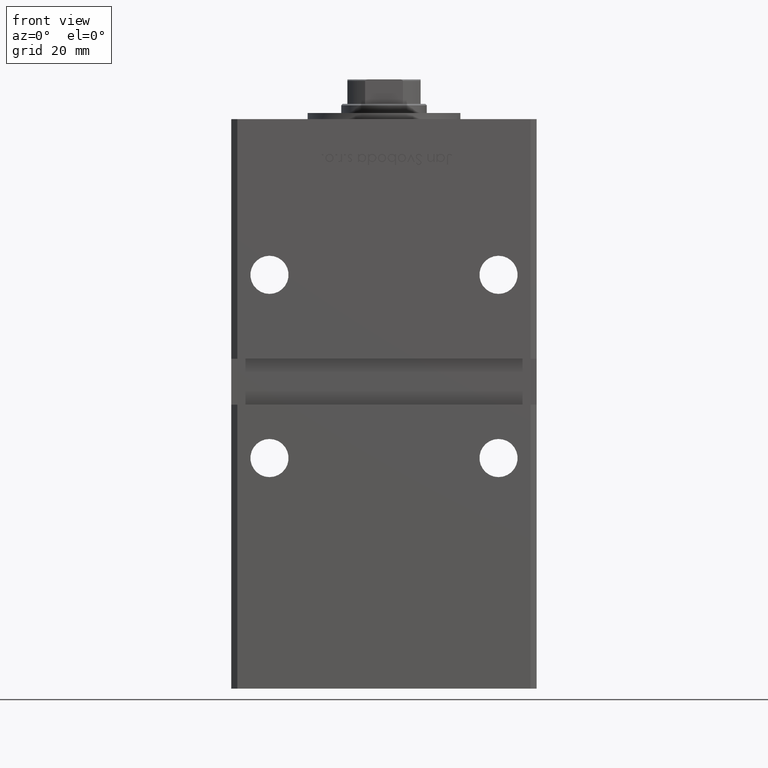
[diagram: clean part render]
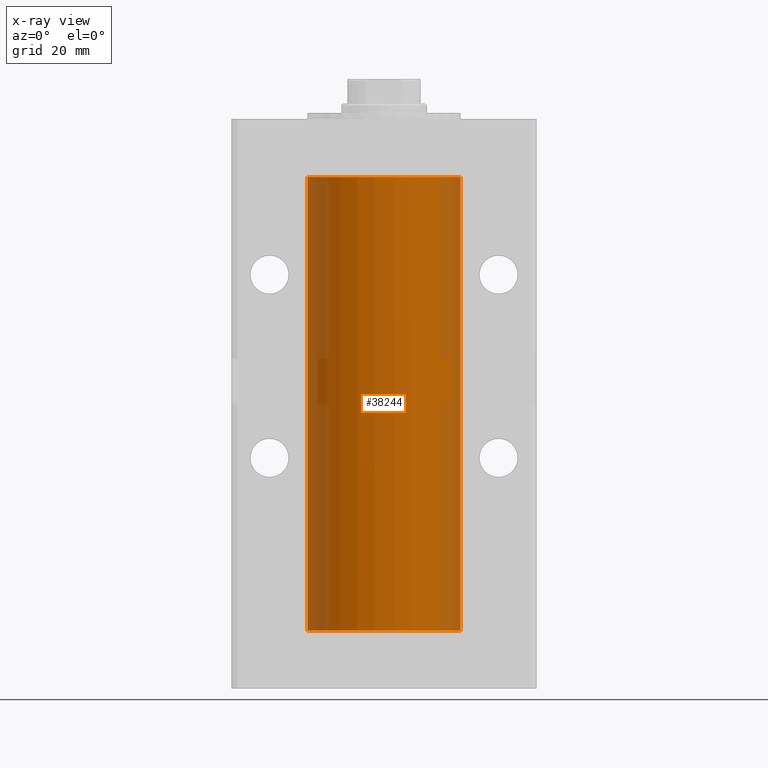
[diagram: x-ray — body ghosted, one internal face saturated and labeled with its STEP entity id]
A machine part, front view, then the same camera in x-ray: the body is ghosted and one INTERNAL B-rep face — a face not visible from any outside direction — is saturated and labeled: STEP entity #38244.
In plain terms, the highlighted cylindrical surface (partial cylindrical patch) has radius 25 mm, axis along (-0, -0, -1).
Its self-contained STEP definition (entity closure, byte-faithful):
#68 = CARTESIAN_POINT ( 'NONE',  ( 25.00000000000000000, 3.061616997868383043E-15, 148.5000000000000000 ) ) ;
#841 = DIRECTION ( 'NONE',  ( -0.000000000000000000, -0.000000000000000000, -1.000000000000000000 ) ) ;
#1848 = FACE_OUTER_BOUND ( 'NONE', #29789, .T. ) ;
#2095 = CIRCLE ( 'NONE', #20992, 25.00000000000000000 ) ;
#2819 = DIRECTION ( 'NONE',  ( -0.000000000000000000, -0.000000000000000000, -1.000000000000000000 ) ) ;
#2865 = CIRCLE ( 'NONE', #22652, 25.00000000000000000 ) ;
#6152 = EDGE_CURVE ( 'NONE', #49588, #12441, #33666, .T. ) ;
#7436 = CARTESIAN_POINT ( 'NONE',  ( 25.00000000000000000, 3.061616997868383043E-15, 0.000000000000000000 ) ) ;
#12441 = VERTEX_POINT ( 'NONE', #15564 ) ;
#12875 = DIRECTION ( 'NONE',  ( 1.000000000000000000, 0.000000000000000000, 0.000000000000000000 ) ) ;
#15564 = CARTESIAN_POINT ( 'NONE',  ( -25.00000000000000000, 0.000000000000000000, 0.000000000000000000 ) ) ;
#15660 = CARTESIAN_POINT ( 'NONE',  ( -25.00000000000000000, 0.000000000000000000, 148.5000000000000000 ) ) ;
#16630 = EDGE_CURVE ( 'NONE', #39097, #50068, #39432, .T. ) ;
#17415 = CARTESIAN_POINT ( 'NONE',  ( 0.000000000000000000, 0.000000000000000000, 148.5000000000000000 ) ) ;
#17711 = VECTOR ( 'NONE', #841, 1000.000000000000000 ) ;
#18700 = CARTESIAN_POINT ( 'NONE',  ( 25.00000000000000000, 3.061616997868383043E-15, 148.5000000000000000 ) ) ;
#20992 = AXIS2_PLACEMENT_3D ( 'NONE', #39458, #27593, #43489 ) ;
#22652 = AXIS2_PLACEMENT_3D ( 'NONE', #17415, #33835, #12875 ) ;
#24306 = EDGE_CURVE ( 'NONE', #49588, #39097, #2865, .T. ) ;
#26890 = EDGE_CURVE ( 'NONE', #12441, #50068, #2095, .T. ) ;
#27593 = DIRECTION ( 'NONE',  ( -0.000000000000000000, 0.000000000000000000, 1.000000000000000000 ) ) ;
#29362 = CARTESIAN_POINT ( 'NONE',  ( -25.00000000000000000, 0.000000000000000000, 148.5000000000000000 ) ) ;
#29789 = EDGE_LOOP ( 'NONE', ( #33481, #44005, #33809, #44688 ) ) ;
#33481 = ORIENTED_EDGE ( 'NONE', *, *, #24306, .T. ) ;
#33666 = LINE ( 'NONE', #29362, #17711 ) ;
#33809 = ORIENTED_EDGE ( 'NONE', *, *, #26890, .F. ) ;
#33835 = DIRECTION ( 'NONE',  ( -0.000000000000000000, 0.000000000000000000, 1.000000000000000000 ) ) ;
#34674 = CYLINDRICAL_SURFACE ( 'NONE', #48009, 25.00000000000000000 ) ;
#38244 = ADVANCED_FACE ( 'NONE', ( #1848 ), #34674, .F. ) ;
#39097 = VERTEX_POINT ( 'NONE', #68 ) ;
#39432 = LINE ( 'NONE', #18700, #45511 ) ;
#39458 = CARTESIAN_POINT ( 'NONE',  ( 0.000000000000000000, 0.000000000000000000, 0.000000000000000000 ) ) ;
#39521 = CARTESIAN_POINT ( 'NONE',  ( 0.000000000000000000, 0.000000000000000000, 148.5000000000000000 ) ) ;
#43489 = DIRECTION ( 'NONE',  ( 1.000000000000000000, 0.000000000000000000, 0.000000000000000000 ) ) ;
#44005 = ORIENTED_EDGE ( 'NONE', *, *, #16630, .T. ) ;
#44688 = ORIENTED_EDGE ( 'NONE', *, *, #6152, .F. ) ;
#45511 = VECTOR ( 'NONE', #2819, 1000.000000000000000 ) ;
#47329 = DIRECTION ( 'NONE',  ( -0.000000000000000000, -0.000000000000000000, -1.000000000000000000 ) ) ;
#48009 = AXIS2_PLACEMENT_3D ( 'NONE', #39521, #47329, #51898 ) ;
#49588 = VERTEX_POINT ( 'NONE', #15660 ) ;
#50068 = VERTEX_POINT ( 'NONE', #7436 ) ;
#51898 = DIRECTION ( 'NONE',  ( -1.000000000000000000, 0.000000000000000000, 0.000000000000000000 ) ) ;